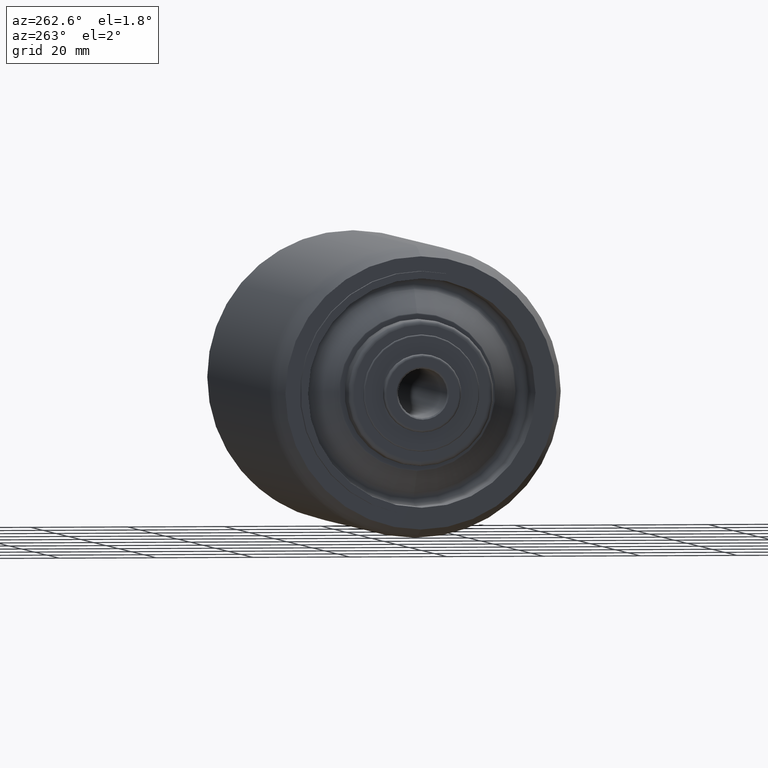
[diagram: clean part render]
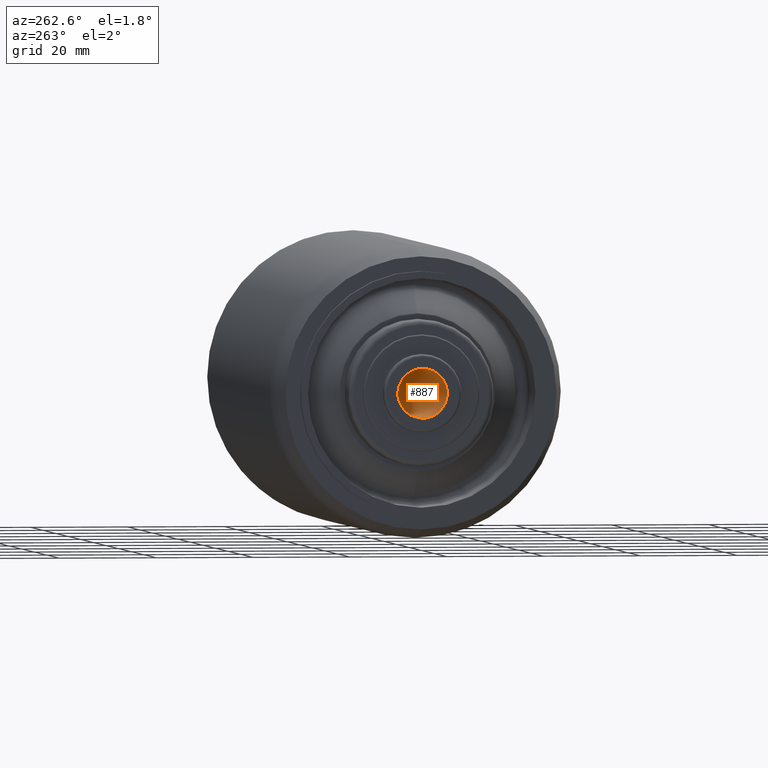
[diagram: same view with one face highlighted and labeled with its STEP entity id]
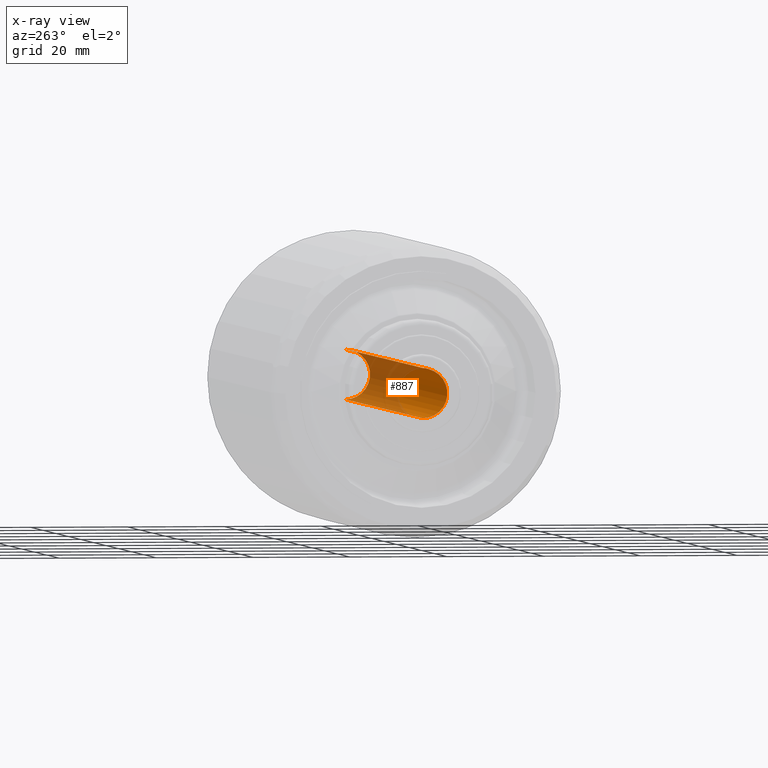
[diagram: x-ray of the same camera — body ghosted, the highlighted face saturated]
A machine part, auxiliary view. The second image highlights one B-rep face of the part: STEP entity #887.
The next image is the same camera in x-ray: the body ghosted, the highlighted face saturated — about 51% of this face is hidden behind the body in this view.
In plain terms, the highlighted cylindrical surface (edge-blend (fillet) strip) has radius 5.1 mm, axis along (-1, -0, -0).
Its self-contained STEP definition (entity closure, byte-faithful):
#119 = EDGE_CURVE ( 'NONE', #1481, #340, #227, .T. ) ;
#214 = VERTEX_POINT ( 'NONE', #1342 ) ;
#227 = CIRCLE ( 'NONE', #1734, 5.100000000000000533 ) ;
#263 = CARTESIAN_POINT ( 'NONE',  ( 61.44999999999999574, 0.0000000000000000000, 5.100000000000000533 ) ) ;
#266 = DIRECTION ( 'NONE',  ( 1.000000000000000000, -0.0000000000000000000, -0.0000000000000000000 ) ) ;
#340 = VERTEX_POINT ( 'NONE', #1388 ) ;
#464 = ORIENTED_EDGE ( 'NONE', *, *, #546, .F. ) ;
#525 = EDGE_CURVE ( 'NONE', #214, #1481, #1524, .T. ) ;
#546 = EDGE_CURVE ( 'NONE', #646, #340, #1911, .T. ) ;
#646 = VERTEX_POINT ( 'NONE', #263 ) ;
#663 = AXIS2_PLACEMENT_3D ( 'NONE', #1566, #1543, #1265 ) ;
#667 = DIRECTION ( 'NONE',  ( -1.000000000000000000, -0.0000000000000000000, -0.0000000000000000000 ) ) ;
#714 = VECTOR ( 'NONE', #667, 1000.000000000000000 ) ;
#760 = ORIENTED_EDGE ( 'NONE', *, *, #1636, .T. ) ;
#827 = FACE_OUTER_BOUND ( 'NONE', #1913, .T. ) ;
#855 = DIRECTION ( 'NONE',  ( 0.0000000000000000000, 0.0000000000000000000, -1.000000000000000000 ) ) ;
#859 = ORIENTED_EDGE ( 'NONE', *, *, #119, .T. ) ;
#887 = ADVANCED_FACE ( 'NONE', ( #827 ), #1193, .F. ) ;
#978 = DIRECTION ( 'NONE',  ( -1.000000000000000000, -0.0000000000000000000, -0.0000000000000000000 ) ) ;
#997 = CARTESIAN_POINT ( 'NONE',  ( 0.0000000000000000000, 6.245698675651501825E-16, -5.100000000000000533 ) ) ;
#1068 = VECTOR ( 'NONE', #978, 1000.000000000000000 ) ;
#1124 = CARTESIAN_POINT ( 'NONE',  ( -61.45000000000001705, 6.245698675651501825E-16, -5.100000000000000533 ) ) ;
#1131 = AXIS2_PLACEMENT_3D ( 'NONE', #1465, #266, #1315 ) ;
#1168 = CARTESIAN_POINT ( 'NONE',  ( -61.45000000000001705, 0.0000000000000000000, 0.0000000000000000000 ) ) ;
#1193 = CYLINDRICAL_SURFACE ( 'NONE', #663, 5.100000000000000533 ) ;
#1265 = DIRECTION ( 'NONE',  ( 0.0000000000000000000, 0.0000000000000000000, 1.000000000000000000 ) ) ;
#1315 = DIRECTION ( 'NONE',  ( 0.0000000000000000000, 0.0000000000000000000, 1.000000000000000000 ) ) ;
#1342 = CARTESIAN_POINT ( 'NONE',  ( 61.44999999999999574, 6.245698675651501825E-16, -5.100000000000000533 ) ) ;
#1357 = ORIENTED_EDGE ( 'NONE', *, *, #525, .T. ) ;
#1388 = CARTESIAN_POINT ( 'NONE',  ( -61.45000000000001705, 0.0000000000000000000, 5.100000000000000533 ) ) ;
#1465 = CARTESIAN_POINT ( 'NONE',  ( 61.44999999999999574, 0.0000000000000000000, 0.0000000000000000000 ) ) ;
#1481 = VERTEX_POINT ( 'NONE', #1124 ) ;
#1524 = LINE ( 'NONE', #997, #714 ) ;
#1543 = DIRECTION ( 'NONE',  ( -1.000000000000000000, -0.0000000000000000000, -0.0000000000000000000 ) ) ;
#1566 = CARTESIAN_POINT ( 'NONE',  ( 0.0000000000000000000, 0.0000000000000000000, 0.0000000000000000000 ) ) ;
#1616 = DIRECTION ( 'NONE',  ( -1.000000000000000000, 0.0000000000000000000, 0.0000000000000000000 ) ) ;
#1636 = EDGE_CURVE ( 'NONE', #646, #214, #1773, .T. ) ;
#1734 = AXIS2_PLACEMENT_3D ( 'NONE', #1168, #1616, #855 ) ;
#1773 = CIRCLE ( 'NONE', #1131, 5.100000000000000533 ) ;
#1869 = CARTESIAN_POINT ( 'NONE',  ( 0.0000000000000000000, 0.0000000000000000000, 5.100000000000000533 ) ) ;
#1911 = LINE ( 'NONE', #1869, #1068 ) ;
#1913 = EDGE_LOOP ( 'NONE', ( #760, #1357, #859, #464 ) ) ;